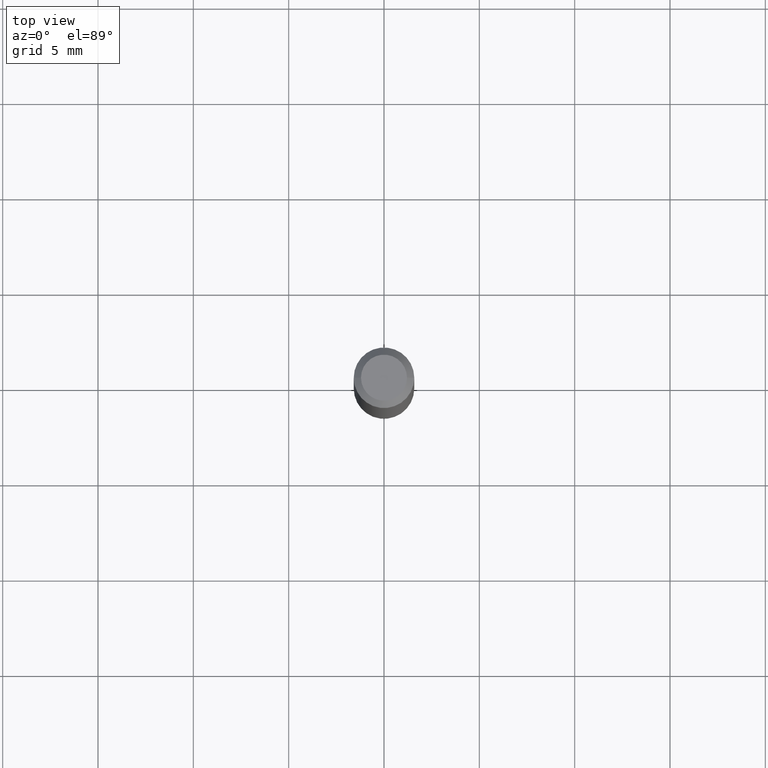
[diagram: clean part render]
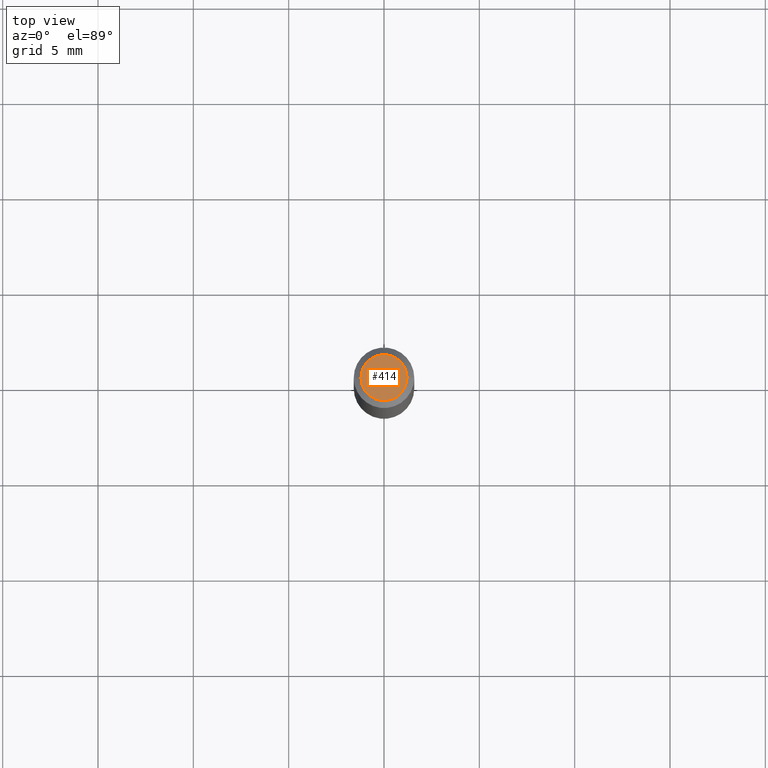
[diagram: same view with one face highlighted and labeled with its STEP entity id]
A machine part, top view. The second image highlights one B-rep face of the part: STEP entity #414.
In plain terms, the highlighted planar face has unit normal (0, -0, -1).
Its self-contained STEP definition (entity closure, byte-faithful):
#2 = DIRECTION ( 'NONE',  ( -2.445468806185136597E-29, 3.491481338843145583E-15, 1.000000000000000000 ) ) ;
#3 = VERTEX_POINT ( 'NONE', #185 ) ;
#51 = PLANE ( 'NONE',  #247 ) ;
#69 = CARTESIAN_POINT ( 'NONE',  ( -3.350520365439544480E-45, 4.783655101941405986E-31, 1.370093274943982539E-16 ) ) ;
#86 = EDGE_CURVE ( 'NONE', #138, #3, #452, .T. ) ;
#128 = CIRCLE ( 'NONE', #197, 0.04749999999999999362 ) ;
#135 = DIRECTION ( 'NONE',  ( 1.000000000000000000, -6.982962677686267499E-15, 4.852736867747366768E-29 ) ) ;
#138 = VERTEX_POINT ( 'NONE', #241 ) ;
#157 = CARTESIAN_POINT ( 'NONE',  ( 3.316907271900976096E-16, 0.04749999999999999362, -9.734069984785028182E-17 ) ) ;
#185 = CARTESIAN_POINT ( 'NONE',  ( 0.04749999999999999362, -4.035134999187576158E-16, 1.370093274944008177E-16 ) ) ;
#197 = AXIS2_PLACEMENT_3D ( 'NONE', #69, #429, #135 ) ;
#214 = EDGE_CURVE ( 'NONE', #3, #138, #128, .T. ) ;
#220 = DIRECTION ( 'NONE',  ( -1.000000000000000000, 6.982962677686265922E-15, -4.876176775795935793E-29 ) ) ;
#241 = CARTESIAN_POINT ( 'NONE',  ( -0.04749999999999999362, 3.578768372314212971E-16, 1.370093274943958627E-16 ) ) ;
#247 = AXIS2_PLACEMENT_3D ( 'NONE', #157, #253, #220 ) ;
#253 = DIRECTION ( 'NONE',  ( 2.438088387897960049E-29, -3.491481338843145188E-15, -1.000000000000000000 ) ) ;
#266 = ORIENTED_EDGE ( 'NONE', *, *, #86, .T. ) ;
#292 = DIRECTION ( 'NONE',  ( 1.000000000000000000, -6.982962677686267499E-15, 4.852736867747366768E-29 ) ) ;
#307 = ORIENTED_EDGE ( 'NONE', *, *, #214, .T. ) ;
#327 = CARTESIAN_POINT ( 'NONE',  ( -3.350520365439544480E-45, 4.783655101941405986E-31, 1.370093274943982539E-16 ) ) ;
#362 = FACE_OUTER_BOUND ( 'NONE', #391, .T. ) ;
#371 = AXIS2_PLACEMENT_3D ( 'NONE', #327, #2, #292 ) ;
#391 = EDGE_LOOP ( 'NONE', ( #266, #307 ) ) ;
#414 = ADVANCED_FACE ( 'NONE', ( #362 ), #51, .F. ) ;
#429 = DIRECTION ( 'NONE',  ( -2.445468806185136597E-29, 3.491481338843145583E-15, 1.000000000000000000 ) ) ;
#452 = CIRCLE ( 'NONE', #371, 0.04749999999999999362 ) ;